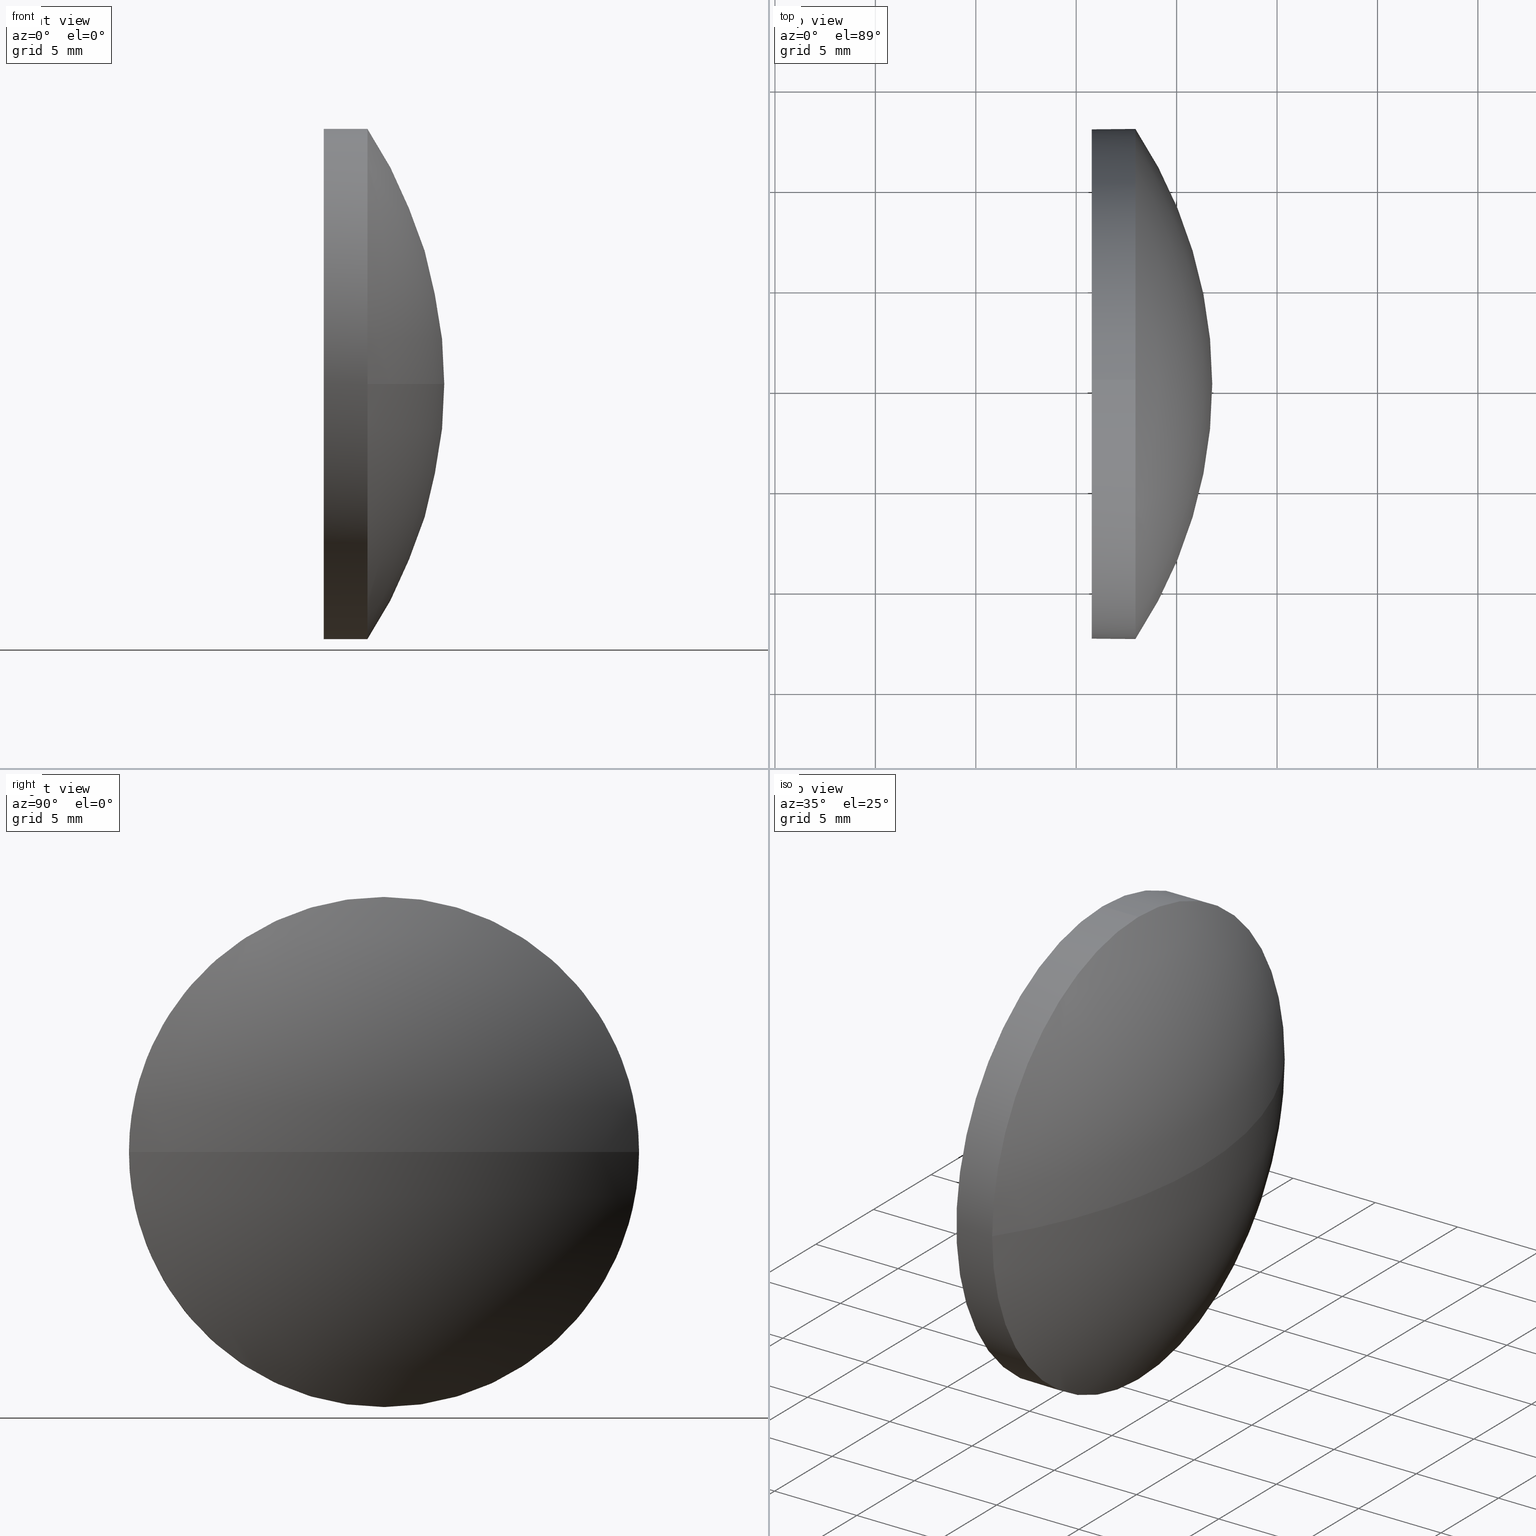
[diagram: canonical four-view strip — front | top / right | iso, engineering-drawing reading convention]
A machine part, canonical four-view strip (front | top / right | iso — engineering-drawing reading convention). The complete STEP part file that produces these views, byte-faithful:
ISO-10303-21;
HEADER;
FILE_DESCRIPTION (( 'STEP AP214' ),
    '1' );
FILE_NAME ('400004.STEP',
    '2019-08-21T03:04:43',
    ( '' ),
    ( '' ),
    'SwSTEP 2.0',
    'SolidWorks 2016',
    '' );
FILE_SCHEMA (( 'AUTOMOTIVE_DESIGN' ));
ENDSEC;

DATA;
#1 = EDGE_CURVE ( 'NONE', #87, #2, #65, .T. ) ;
#2 = VERTEX_POINT ( 'NONE', #70 ) ;
#3 = CARTESIAN_POINT ( 'NONE',  ( 117.9493723868566800, 77.93355492641219900, -1.555301434917139000E-015 ) ) ;
#4 = PRODUCT_DEFINITION ( 'δ֪', '', #146, #166 ) ;
#5 = CARTESIAN_POINT ( 'NONE',  ( 0.0000000000000000000, 0.0000000000000000000, 0.0000000000000000000 ) ) ;
#6 = CIRCLE ( 'NONE', #124, 23.00000000000000700 ) ;
#7 = CARTESIAN_POINT ( 'NONE',  ( 115.7736064308381300, 65.23355492641219700, 0.0000000000000000000 ) ) ;
#8 = ADVANCED_FACE ( 'NONE', ( #9 ), #136, .T. ) ;
#9 = FACE_OUTER_BOUND ( 'NONE', #45, .T. ) ;
#10 = PRESENTATION_LAYER_ASSIGNMENT (  '', '', ( #28 ) ) ;
#11 = CARTESIAN_POINT ( 'NONE',  ( 117.9493723868566800, 65.23355492641219700, 0.0000000000000000000 ) ) ;
#12 = SPHERICAL_SURFACE ( 'NONE', #110, 23.00000000000000700 ) ;
#13 = DIRECTION ( 'NONE',  ( 0.0000000000000000000, 0.0000000000000000000, -1.000000000000000000 ) ) ;
#14 = DIRECTION ( 'NONE',  ( 1.000000000000000000, -0.0000000000000000000, -0.0000000000000000000 ) ) ;
#15 = PLANE ( 'NONE',  #95 ) ;
#16 = CLOSED_SHELL ( 'NONE', ( #8, #96, #137, #155, #181 ) ) ;
#17 =( LENGTH_UNIT ( ) NAMED_UNIT ( * ) SI_UNIT ( .MILLI., .METRE. ) );
#18 = SURFACE_STYLE_USAGE ( .BOTH. , #78 ) ;
#19 = ORIENTED_EDGE ( 'NONE', *, *, #66, .T. ) ;
#20 = PRODUCT ( '400004', '400004', '', ( #163 ) ) ;
#21 = AXIS2_PLACEMENT_3D ( 'NONE', #100, #114, #85 ) ;
#22 = ORIENTED_EDGE ( 'NONE', *, *, #34, .F. ) ;
#23 = PRESENTATION_STYLE_ASSIGNMENT (( #18 ) ) ;
#24 = ORIENTED_EDGE ( 'NONE', *, *, #1, .F. ) ;
#25 = FACE_OUTER_BOUND ( 'NONE', #180, .T. ) ;
#26 = FILL_AREA_STYLE ('',( #102 ) ) ;
#27 = DIRECTION ( 'NONE',  ( 1.000000000000000000, -0.0000000000000000000, -0.0000000000000000000 ) ) ;
#28 = STYLED_ITEM ( 'NONE', ( #82 ), #31 ) ;
#29 = DIRECTION ( 'NONE',  ( 0.0000000000000000000, 0.0000000000000000000, -1.000000000000000000 ) ) ;
#30 = ORIENTED_EDGE ( 'NONE', *, *, #170, .T. ) ;
#31 = MANIFOLD_SOLID_BREP ( '��ת1', #16 ) ;
#32 = APPLICATION_PROTOCOL_DEFINITION ( 'draft international standard', 'automotive_design', 1998, #107 ) ;
#33 = LINE ( 'NONE', #73, #109 ) ;
#34 = EDGE_CURVE ( 'NONE', #58, #169, #164, .T. ) ;
#35 = DIRECTION ( 'NONE',  ( 0.0000000000000000000, 0.0000000000000000000, 1.000000000000000000 ) ) ;
#36 = CARTESIAN_POINT ( 'NONE',  ( 115.7736064308381300, 65.23355492641219700, 0.0000000000000000000 ) ) ;
#37 = SURFACE_SIDE_STYLE ('',( #130 ) ) ;
#38 =( NAMED_UNIT ( * ) SI_UNIT ( $, .STERADIAN. ) SOLID_ANGLE_UNIT ( ) );
#39 = VERTEX_POINT ( 'NONE', #113 ) ;
#40 = CARTESIAN_POINT ( 'NONE',  ( 121.7736064308381300, 65.23355492641219700, 0.0000000000000000000 ) ) ;
#41 = DIRECTION ( 'NONE',  ( 0.0000000000000000000, 0.0000000000000000000, -1.000000000000000000 ) ) ;
#42 = DIRECTION ( 'NONE',  ( 0.0000000000000000000, 1.000000000000000000, -1.224646799147353200E-016 ) ) ;
#43 = ORIENTED_EDGE ( 'NONE', *, *, #142, .T. ) ;
#44 = APPLICATION_PROTOCOL_DEFINITION ( 'draft international standard', 'automotive_design', 1998, #165 ) ;
#45 = EDGE_LOOP ( 'NONE', ( #117, #30, #24, #112, #161 ) ) ;
#46 =( GEOMETRIC_REPRESENTATION_CONTEXT ( 3 ) GLOBAL_UNCERTAINTY_ASSIGNED_CONTEXT ( ( #173 ) ) GLOBAL_UNIT_ASSIGNED_CONTEXT ( ( #185, #126, #38 ) ) REPRESENTATION_CONTEXT ( 'NONE', 'WORKASPACE' ) );
#47 = ADVANCED_BREP_SHAPE_REPRESENTATION ( '400004', ( #31, #120 ), #134 ) ;
#48 = CIRCLE ( 'NONE', #68, 12.70000000000000300 ) ;
#49 = EDGE_CURVE ( 'NONE', #39, #140, #125, .T. ) ;
#50 = SHAPE_DEFINITION_REPRESENTATION ( #135, #47 ) ;
#51 = DIRECTION ( 'NONE',  ( 0.0000000000000000000, 0.0000000000000000000, -1.000000000000000000 ) ) ;
#52 = CARTESIAN_POINT ( 'NONE',  ( 115.7736064308381300, 65.23355492641219700, 12.70000000000000300 ) ) ;
#53 = ORIENTED_EDGE ( 'NONE', *, *, #63, .T. ) ;
#54 =( NAMED_UNIT ( * ) PLANE_ANGLE_UNIT ( ) SI_UNIT ( $, .RADIAN. ) );
#55 = AXIS2_PLACEMENT_3D ( 'NONE', #36, #141, #51 ) ;
#56 =( NAMED_UNIT ( * ) SI_UNIT ( $, .STERADIAN. ) SOLID_ANGLE_UNIT ( ) );
#57 = CARTESIAN_POINT ( 'NONE',  ( 98.77360643083812900, 65.23355492641219700, 0.0000000000000000000 ) ) ;
#58 = VERTEX_POINT ( 'NONE', #52 ) ;
#59 = CARTESIAN_POINT ( 'NONE',  ( 117.9493723868566800, 65.23355492641219700, -12.70000000000000300 ) ) ;
#60 = FILL_AREA_STYLE ('',( #153 ) ) ;
#61 = EDGE_CURVE ( 'NONE', #169, #58, #48, .T. ) ;
#62 = COLOUR_RGB ( '',1.000000000000000000, 1.000000000000000000, 1.000000000000000000 ) ;
#63 = EDGE_CURVE ( 'NONE', #39, #133, #167, .T. ) ;
#64 =( NAMED_UNIT ( * ) PLANE_ANGLE_UNIT ( ) SI_UNIT ( $, .RADIAN. ) );
#65 = CIRCLE ( 'NONE', #81, 12.70000000000000300 ) ;
#66 = EDGE_CURVE ( 'NONE', #2, #39, #121, .T. ) ;
#67 = FACE_OUTER_BOUND ( 'NONE', #156, .T. ) ;
#68 = AXIS2_PLACEMENT_3D ( 'NONE', #151, #160, #158 ) ;
#69 = SPHERICAL_SURFACE ( 'NONE', #84, 23.00000000000000700 ) ;
#70 = CARTESIAN_POINT ( 'NONE',  ( 117.9493723868566800, 65.23355492641219700, 12.70000000000000300 ) ) ;
#71 = DIRECTION ( 'NONE',  ( 0.0000000000000000000, -0.0000000000000000000, -1.000000000000000000 ) ) ;
#72 = ORIENTED_EDGE ( 'NONE', *, *, #174, .F. ) ;
#73 = CARTESIAN_POINT ( 'NONE',  ( 121.7736064308381300, 65.23355492641219700, -12.70000000000000300 ) ) ;
#74 = CARTESIAN_POINT ( 'NONE',  ( 115.7736064308381300, 65.23355492641219700, -12.70000000000000300 ) ) ;
#75 = AXIS2_PLACEMENT_3D ( 'NONE', #11, #27, #41 ) ;
#76 = DIRECTION ( 'NONE',  ( 1.000000000000000000, -0.0000000000000000000, -0.0000000000000000000 ) ) ;
#77 = MECHANICAL_DESIGN_GEOMETRIC_PRESENTATION_REPRESENTATION (  '', ( #93 ), #171 ) ;
#78 = SURFACE_SIDE_STYLE ('',( #90 ) ) ;
#79 = AXIS2_PLACEMENT_3D ( 'NONE', #162, #118, #177 ) ;
#80 = ORIENTED_EDGE ( 'NONE', *, *, #61, .F. ) ;
#81 = AXIS2_PLACEMENT_3D ( 'NONE', #145, #143, #13 ) ;
#82 = PRESENTATION_STYLE_ASSIGNMENT (( #115 ) ) ;
#83 = CYLINDRICAL_SURFACE ( 'NONE', #157, 12.70000000000000300 ) ;
#84 = AXIS2_PLACEMENT_3D ( 'NONE', #57, #178, #104 ) ;
#85 = DIRECTION ( 'NONE',  ( 0.0000000000000000000, 0.0000000000000000000, -1.000000000000000000 ) ) ;
#86 = ORIENTED_EDGE ( 'NONE', *, *, #63, .F. ) ;
#87 = VERTEX_POINT ( 'NONE', #3 ) ;
#88 = CARTESIAN_POINT ( 'NONE',  ( 117.9493723868566800, 65.23355492641219700, 0.0000000000000000000 ) ) ;
#89 = AXIS2_PLACEMENT_3D ( 'NONE', #105, #179, #128 ) ;
#90 = SURFACE_STYLE_FILL_AREA ( #60 ) ;
#91 = DIRECTION ( 'NONE',  ( -0.0000000000000000000, -1.224646799147353200E-016, -1.000000000000000000 ) ) ;
#92 = DIRECTION ( 'NONE',  ( 1.000000000000000000, -0.0000000000000000000, -0.0000000000000000000 ) ) ;
#93 = STYLED_ITEM ( 'NONE', ( #23 ), #47 ) ;
#94 = ORIENTED_EDGE ( 'NONE', *, *, #49, .F. ) ;
#95 = AXIS2_PLACEMENT_3D ( 'NONE', #7, #148, #147 ) ;
#96 = ADVANCED_FACE ( 'NONE', ( #25 ), #12, .T. ) ;
#97 = ORIENTED_EDGE ( 'NONE', *, *, #138, .T. ) ;
#98 = AXIS2_PLACEMENT_3D ( 'NONE', #88, #129, #29 ) ;
#99 = ORIENTED_EDGE ( 'NONE', *, *, #34, .T. ) ;
#100 = CARTESIAN_POINT ( 'NONE',  ( 121.7736064308381300, 65.23355492641219700, 0.0000000000000000000 ) ) ;
#101 = ORIENTED_EDGE ( 'NONE', *, *, #174, .T. ) ;
#102 = FILL_AREA_STYLE_COLOUR ( '', #172 ) ;
#103 = DIRECTION ( 'NONE',  ( 0.0000000000000000000, -1.000000000000000000, 0.0000000000000000000 ) ) ;
#104 = DIRECTION ( 'NONE',  ( 0.0000000000000000000, -1.000000000000000000, 0.0000000000000000000 ) ) ;
#105 = CARTESIAN_POINT ( 'NONE',  ( 98.77360643083812900, 65.23355492641219700, 0.0000000000000000000 ) ) ;
#106 = ORIENTED_EDGE ( 'NONE', *, *, #1, .T. ) ;
#107 = APPLICATION_CONTEXT ( 'automotive_design' ) ;
#108 =( NAMED_UNIT ( * ) SI_UNIT ( $, .STERADIAN. ) SOLID_ANGLE_UNIT ( ) );
#109 = VECTOR ( 'NONE', #92, 1000.000000000000000 ) ;
#110 = AXIS2_PLACEMENT_3D ( 'NONE', #175, #71, #103 ) ;
#111 =( LENGTH_UNIT ( ) NAMED_UNIT ( * ) SI_UNIT ( .MILLI., .METRE. ) );
#112 = ORIENTED_EDGE ( 'NONE', *, *, #138, .F. ) ;
#113 = CARTESIAN_POINT ( 'NONE',  ( 117.9493723868566800, 52.53355492641219400, 0.0000000000000000000 ) ) ;
#114 = DIRECTION ( 'NONE',  ( 1.000000000000000000, -0.0000000000000000000, -0.0000000000000000000 ) ) ;
#115 = SURFACE_STYLE_USAGE ( .BOTH. , #37 ) ;
#116 = CARTESIAN_POINT ( 'NONE',  ( 121.7736064308381300, 65.23355492641219700, 12.70000000000000300 ) ) ;
#117 = ORIENTED_EDGE ( 'NONE', *, *, #61, .T. ) ;
#118 = DIRECTION ( 'NONE',  ( 1.000000000000000000, -0.0000000000000000000, -0.0000000000000000000 ) ) ;
#119 = CIRCLE ( 'NONE', #98, 12.70000000000000300 ) ;
#120 = AXIS2_PLACEMENT_3D ( 'NONE', #5, #35, #154 ) ;
#121 = CIRCLE ( 'NONE', #79, 12.70000000000000300 ) ;
#122 = ORIENTED_EDGE ( 'NONE', *, *, #49, .T. ) ;
#123 = ORIENTED_EDGE ( 'NONE', *, *, #170, .F. ) ;
#124 = AXIS2_PLACEMENT_3D ( 'NONE', #131, #91, #42 ) ;
#125 = CIRCLE ( 'NONE', #75, 12.70000000000000300 ) ;
#126 =( NAMED_UNIT ( * ) PLANE_ANGLE_UNIT ( ) SI_UNIT ( $, .RADIAN. ) );
#127 = ORIENTED_EDGE ( 'NONE', *, *, #66, .F. ) ;
#128 = DIRECTION ( 'NONE',  ( 1.000000000000000000, 0.0000000000000000000, 0.0000000000000000000 ) ) ;
#129 = DIRECTION ( 'NONE',  ( 1.000000000000000000, -0.0000000000000000000, -0.0000000000000000000 ) ) ;
#130 = SURFACE_STYLE_FILL_AREA ( #26 ) ;
#131 = CARTESIAN_POINT ( 'NONE',  ( 98.77360643083812900, 65.23355492641219700, 0.0000000000000000000 ) ) ;
#132 = UNCERTAINTY_MEASURE_WITH_UNIT (LENGTH_MEASURE( 1.000000000000000100E-005 ), #17, 'distance_accuracy_value', 'NONE');
#133 = VERTEX_POINT ( 'NONE', #150 ) ;
#134 =( GEOMETRIC_REPRESENTATION_CONTEXT ( 3 ) GLOBAL_UNCERTAINTY_ASSIGNED_CONTEXT ( ( #132 ) ) GLOBAL_UNIT_ASSIGNED_CONTEXT ( ( #17, #54, #56 ) ) REPRESENTATION_CONTEXT ( 'NONE', 'WORKASPACE' ) );
#135 = PRODUCT_DEFINITION_SHAPE ( 'NONE', 'NONE',  #4 ) ;
#136 = CYLINDRICAL_SURFACE ( 'NONE', #21, 12.70000000000000300 ) ;
#137 = ADVANCED_FACE ( 'NONE', ( #152 ), #69, .T. ) ;
#138 = EDGE_CURVE ( 'NONE', #140, #87, #119, .T. ) ;
#139 = VECTOR ( 'NONE', #76, 1000.000000000000000 ) ;
#140 = VERTEX_POINT ( 'NONE', #59 ) ;
#141 = DIRECTION ( 'NONE',  ( 1.000000000000000000, -0.0000000000000000000, -0.0000000000000000000 ) ) ;
#142 = EDGE_CURVE ( 'NONE', #169, #140, #33, .T. ) ;
#143 = DIRECTION ( 'NONE',  ( 1.000000000000000000, -0.0000000000000000000, -0.0000000000000000000 ) ) ;
#144 = LINE ( 'NONE', #116, #139 ) ;
#145 = CARTESIAN_POINT ( 'NONE',  ( 117.9493723868566800, 65.23355492641219700, 0.0000000000000000000 ) ) ;
#146 = PRODUCT_DEFINITION_FORMATION_WITH_SPECIFIED_SOURCE ( '�κ�', '', #20, .NOT_KNOWN. ) ;
#147 = DIRECTION ( 'NONE',  ( 0.0000000000000000000, 0.0000000000000000000, 1.000000000000000000 ) ) ;
#148 = DIRECTION ( 'NONE',  ( -1.000000000000000000, 0.0000000000000000000, 0.0000000000000000000 ) ) ;
#149 = EDGE_LOOP ( 'NONE', ( #72, #106, #19, #53 ) ) ;
#150 = CARTESIAN_POINT ( 'NONE',  ( 121.7736064308381300, 65.23355492641219700, 0.0000000000000000000 ) ) ;
#151 = CARTESIAN_POINT ( 'NONE',  ( 115.7736064308381300, 65.23355492641219700, 0.0000000000000000000 ) ) ;
#152 = FACE_OUTER_BOUND ( 'NONE', #149, .T. ) ;
#153 = FILL_AREA_STYLE_COLOUR ( '', #62 ) ;
#154 = DIRECTION ( 'NONE',  ( 1.000000000000000000, 0.0000000000000000000, 0.0000000000000000000 ) ) ;
#155 = ADVANCED_FACE ( 'NONE', ( #176 ), #83, .T. ) ;
#156 = EDGE_LOOP ( 'NONE', ( #80, #22 ) ) ;
#157 = AXIS2_PLACEMENT_3D ( 'NONE', #40, #14, #159 ) ;
#158 = DIRECTION ( 'NONE',  ( 0.0000000000000000000, 0.0000000000000000000, -1.000000000000000000 ) ) ;
#159 = DIRECTION ( 'NONE',  ( 0.0000000000000000000, 0.0000000000000000000, -1.000000000000000000 ) ) ;
#160 = DIRECTION ( 'NONE',  ( 1.000000000000000000, -0.0000000000000000000, -0.0000000000000000000 ) ) ;
#161 = ORIENTED_EDGE ( 'NONE', *, *, #142, .F. ) ;
#162 = CARTESIAN_POINT ( 'NONE',  ( 117.9493723868566800, 65.23355492641219700, 0.0000000000000000000 ) ) ;
#163 = PRODUCT_CONTEXT ( 'NONE', #107, 'mechanical' ) ;
#164 = CIRCLE ( 'NONE', #55, 12.70000000000000300 ) ;
#165 = APPLICATION_CONTEXT ( 'automotive_design' ) ;
#166 = PRODUCT_DEFINITION_CONTEXT ( 'detailed design', #165, 'design' ) ;
#167 = CIRCLE ( 'NONE', #89, 23.00000000000000700 ) ;
#168 = PRESENTATION_LAYER_ASSIGNMENT (  '', '', ( #93 ) ) ;
#169 = VERTEX_POINT ( 'NONE', #74 ) ;
#170 = EDGE_CURVE ( 'NONE', #58, #2, #144, .T. ) ;
#171 =( GEOMETRIC_REPRESENTATION_CONTEXT ( 3 ) GLOBAL_UNCERTAINTY_ASSIGNED_CONTEXT ( ( #184 ) ) GLOBAL_UNIT_ASSIGNED_CONTEXT ( ( #111, #64, #108 ) ) REPRESENTATION_CONTEXT ( 'NONE', 'WORKASPACE' ) );
#172 = COLOUR_RGB ( '',1.000000000000000000, 1.000000000000000000, 1.000000000000000000 ) ;
#173 = UNCERTAINTY_MEASURE_WITH_UNIT (LENGTH_MEASURE( 1.000000000000000100E-005 ), #185, 'distance_accuracy_value', 'NONE');
#174 = EDGE_CURVE ( 'NONE', #87, #133, #6, .T. ) ;
#175 = CARTESIAN_POINT ( 'NONE',  ( 98.77360643083812900, 65.23355492641219700, 0.0000000000000000000 ) ) ;
#176 = FACE_OUTER_BOUND ( 'NONE', #182, .T. ) ;
#177 = DIRECTION ( 'NONE',  ( 0.0000000000000000000, 0.0000000000000000000, -1.000000000000000000 ) ) ;
#178 = DIRECTION ( 'NONE',  ( 0.0000000000000000000, -0.0000000000000000000, -1.000000000000000000 ) ) ;
#179 = DIRECTION ( 'NONE',  ( 0.0000000000000000000, 0.0000000000000000000, 1.000000000000000000 ) ) ;
#180 = EDGE_LOOP ( 'NONE', ( #122, #97, #101, #86 ) ) ;
#181 = ADVANCED_FACE ( 'NONE', ( #67 ), #15, .T. ) ;
#182 = EDGE_LOOP ( 'NONE', ( #123, #99, #43, #94, #127 ) ) ;
#183 = MECHANICAL_DESIGN_GEOMETRIC_PRESENTATION_REPRESENTATION (  '', ( #28 ), #46 ) ;
#184 = UNCERTAINTY_MEASURE_WITH_UNIT (LENGTH_MEASURE( 1.000000000000000100E-005 ), #111, 'distance_accuracy_value', 'NONE');
#185 =( LENGTH_UNIT ( ) NAMED_UNIT ( * ) SI_UNIT ( .MILLI., .METRE. ) );
#186 = PRODUCT_RELATED_PRODUCT_CATEGORY ( 'part', '', ( #20 ) ) ;
ENDSEC;
END-ISO-10303-21;
